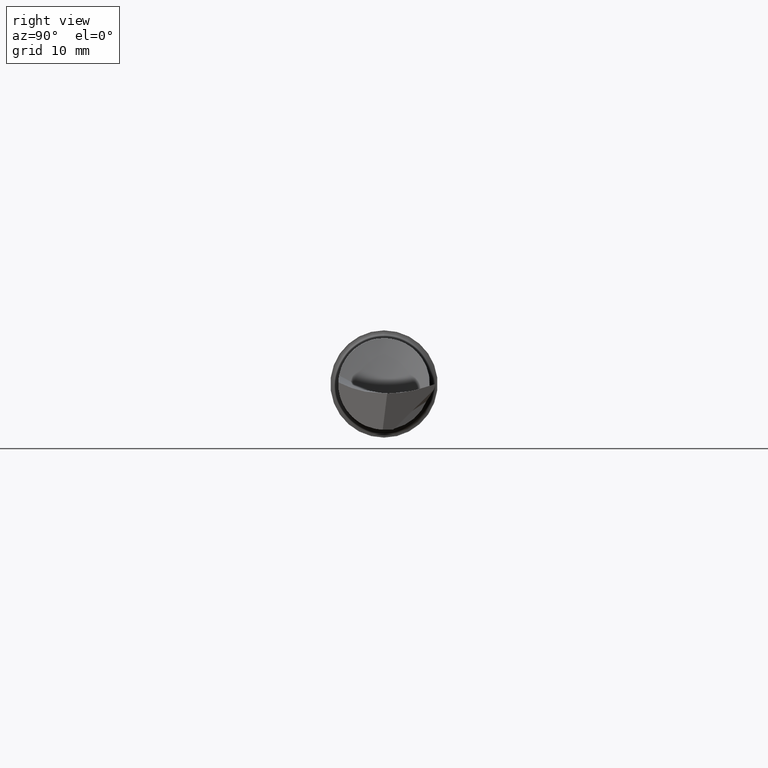
[diagram: clean part render]
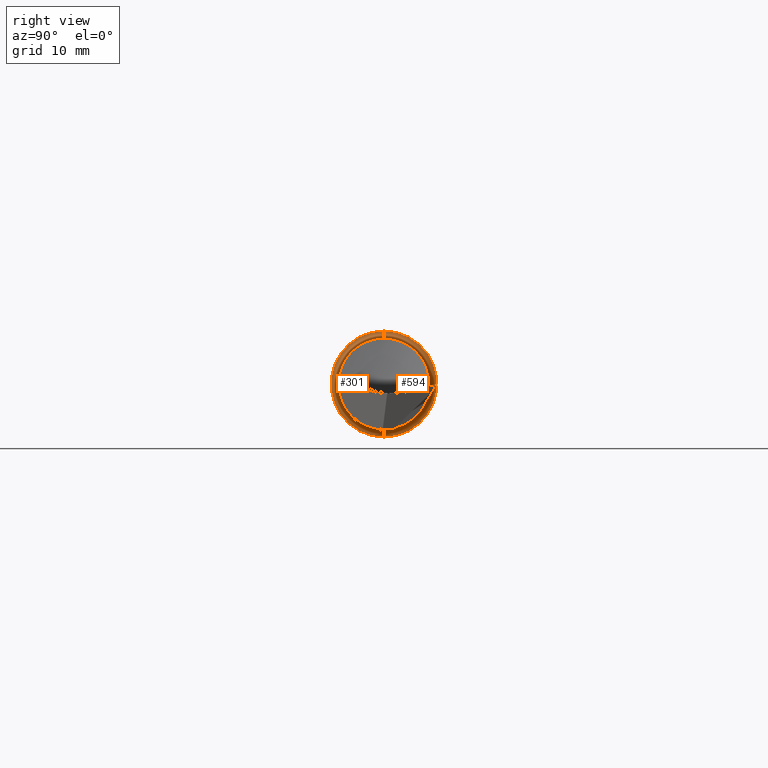
[diagram: same view with one multi-face feature highlighted, each face labeled with its STEP entity id]
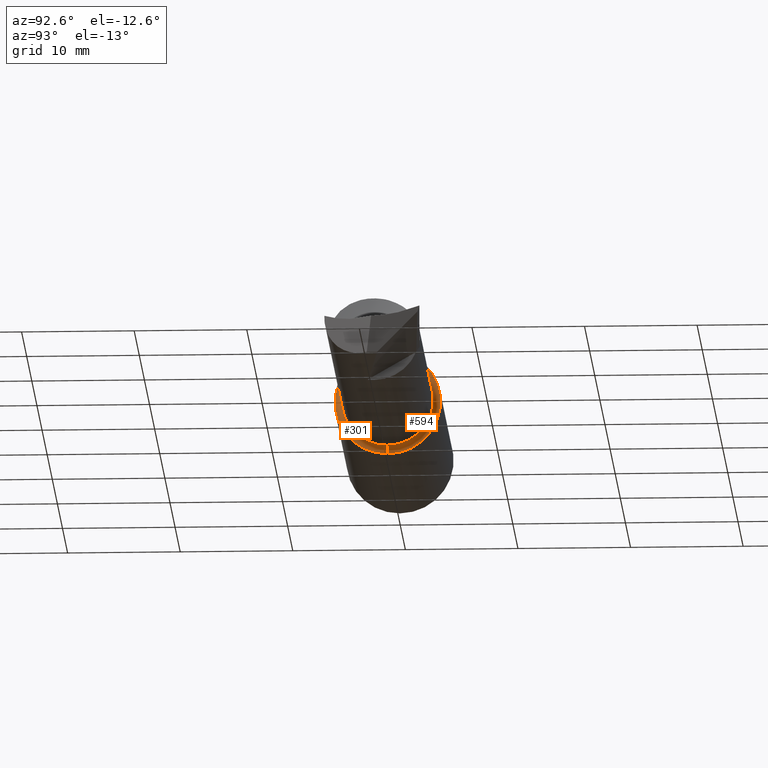
[diagram: same view with one multi-face feature highlighted, each face labeled with its STEP entity id]
A machine part, right view. The highlighted faces form ONE feature: a constant-radius fillet chain: 2 tangent blend faces with common blend radius 0.635 mm. The faces share edges in the B-rep.
A second angle (auxiliary view) of the same feature is appended — it is thin or edge-on in the first view.
Their STEP definitions:
[1] entity #594 (Torus):
#26 = CIRCLE ( 'NONE', #654, 0.02499999999999993894 ) ;
#28 = VERTEX_POINT ( 'NONE', #486 ) ;
#40 = ORIENTED_EDGE ( 'NONE', *, *, #162, .T. ) ;
#65 = FACE_OUTER_BOUND ( 'NONE', #782, .T. ) ;
#73 = EDGE_CURVE ( 'NONE', #28, #183, #26, .T. ) ;
#115 = CARTESIAN_POINT ( 'NONE',  ( 0.9598893049320388338, 0.000000000000000000, 0.000000000000000000 ) ) ;
#119 = CARTESIAN_POINT ( 'NONE',  ( 0.9848893049320387449, 2.265596578422603655E-17, -0.1849999999999999978 ) ) ;
#134 = DIRECTION ( 'NONE',  ( 0.000000000000000000, 0.000000000000000000, 1.000000000000000000 ) ) ;
#162 = EDGE_CURVE ( 'NONE', #183, #861, #250, .T. ) ;
#166 = AXIS2_PLACEMENT_3D ( 'NONE', #119, #456, #523 ) ;
#180 = AXIS2_PLACEMENT_3D ( 'NONE', #115, #664, #320 ) ;
#183 = VERTEX_POINT ( 'NONE', #524 ) ;
#189 = EDGE_CURVE ( 'NONE', #28, #819, #673, .T. ) ;
#250 = CIRCLE ( 'NONE', #528, 0.1600000000000000588 ) ;
#315 = CARTESIAN_POINT ( 'NONE',  ( 0.9848893049320387449, 0.000000000000000000, 0.000000000000000000 ) ) ;
#320 = DIRECTION ( 'NONE',  ( 0.000000000000000000, 0.000000000000000000, 1.000000000000000000 ) ) ;
#325 = CIRCLE ( 'NONE', #166, 0.02499999999999993894 ) ;
#352 = ORIENTED_EDGE ( 'NONE', *, *, #411, .F. ) ;
#356 = TOROIDAL_SURFACE ( 'NONE', #875, 0.1849999999999999978, 0.02499999999999993894 ) ;
#374 = CARTESIAN_POINT ( 'NONE',  ( 0.9848893049320387449, 0.000000000000000000, 0.1849999999999999978 ) ) ;
#385 = DIRECTION ( 'NONE',  ( 0.000000000000000000, 0.000000000000000000, -1.000000000000000000 ) ) ;
#399 = CARTESIAN_POINT ( 'NONE',  ( 0.9598893049320388338, 2.265596578422603963E-17, -0.1849999999999999978 ) ) ;
#411 = EDGE_CURVE ( 'NONE', #819, #861, #325, .T. ) ;
#454 = DIRECTION ( 'NONE',  ( 0.000000000000000000, 0.000000000000000000, 1.000000000000000000 ) ) ;
#456 = DIRECTION ( 'NONE',  ( -0.000000000000000000, 1.000000000000000000, 1.224646799147353207E-16 ) ) ;
#468 = ORIENTED_EDGE ( 'NONE', *, *, #73, .T. ) ;
#476 = CARTESIAN_POINT ( 'NONE',  ( 0.9848893049320387449, 0.000000000000000000, 0.000000000000000000 ) ) ;
#486 = CARTESIAN_POINT ( 'NONE',  ( 0.9598893049320388338, 0.000000000000000000, 0.1849999999999999978 ) ) ;
#517 = ORIENTED_EDGE ( 'NONE', *, *, #189, .F. ) ;
#523 = DIRECTION ( 'NONE',  ( 0.000000000000000000, -1.224646799147353454E-16, 1.000000000000000000 ) ) ;
#524 = CARTESIAN_POINT ( 'NONE',  ( 0.9848893049320387449, 0.000000000000000000, 0.1600000000000000588 ) ) ;
#528 = AXIS2_PLACEMENT_3D ( 'NONE', #315, #857, #454 ) ;
#594 = ADVANCED_FACE ( 'NONE', ( #65 ), #356, .F. ) ;
#654 = AXIS2_PLACEMENT_3D ( 'NONE', #374, #723, #385 ) ;
#664 = DIRECTION ( 'NONE',  ( -1.000000000000000000, -0.000000000000000000, -0.000000000000000000 ) ) ;
#673 = CIRCLE ( 'NONE', #180, 0.1849999999999999978 ) ;
#684 = CARTESIAN_POINT ( 'NONE',  ( 0.9848893049320387449, 1.959434878635766031E-17, -0.1600000000000000588 ) ) ;
#723 = DIRECTION ( 'NONE',  ( 0.000000000000000000, -1.000000000000000000, 0.000000000000000000 ) ) ;
#753 = DIRECTION ( 'NONE',  ( -1.000000000000000000, -0.000000000000000000, -0.000000000000000000 ) ) ;
#782 = EDGE_LOOP ( 'NONE', ( #352, #517, #468, #40 ) ) ;
#819 = VERTEX_POINT ( 'NONE', #399 ) ;
#857 = DIRECTION ( 'NONE',  ( -1.000000000000000000, -0.000000000000000000, -0.000000000000000000 ) ) ;
#861 = VERTEX_POINT ( 'NONE', #684 ) ;
#875 = AXIS2_PLACEMENT_3D ( 'NONE', #476, #753, #134 ) ;
[2] entity #301 (Torus):
#10 = CIRCLE ( 'NONE', #771, 0.1600000000000000588 ) ;
#26 = CIRCLE ( 'NONE', #654, 0.02499999999999993894 ) ;
#28 = VERTEX_POINT ( 'NONE', #486 ) ;
#48 = EDGE_LOOP ( 'NONE', ( #670, #247, #231, #58 ) ) ;
#58 = ORIENTED_EDGE ( 'NONE', *, *, #73, .F. ) ;
#73 = EDGE_CURVE ( 'NONE', #28, #183, #26, .T. ) ;
#119 = CARTESIAN_POINT ( 'NONE',  ( 0.9848893049320387449, 2.265596578422603655E-17, -0.1849999999999999978 ) ) ;
#153 = DIRECTION ( 'NONE',  ( 0.000000000000000000, 0.000000000000000000, 1.000000000000000000 ) ) ;
#166 = AXIS2_PLACEMENT_3D ( 'NONE', #119, #456, #523 ) ;
#178 = CARTESIAN_POINT ( 'NONE',  ( 0.9598893049320388338, 0.000000000000000000, 0.000000000000000000 ) ) ;
#183 = VERTEX_POINT ( 'NONE', #524 ) ;
#188 = CARTESIAN_POINT ( 'NONE',  ( 0.9848893049320387449, 0.000000000000000000, 0.000000000000000000 ) ) ;
#224 = CIRCLE ( 'NONE', #465, 0.1849999999999999978 ) ;
#231 = ORIENTED_EDGE ( 'NONE', *, *, #358, .T. ) ;
#247 = ORIENTED_EDGE ( 'NONE', *, *, #411, .T. ) ;
#301 = ADVANCED_FACE ( 'NONE', ( #691 ), #872, .F. ) ;
#314 = DIRECTION ( 'NONE',  ( -1.000000000000000000, -0.000000000000000000, -0.000000000000000000 ) ) ;
#325 = CIRCLE ( 'NONE', #166, 0.02499999999999993894 ) ;
#358 = EDGE_CURVE ( 'NONE', #861, #183, #10, .T. ) ;
#364 = DIRECTION ( 'NONE',  ( -1.000000000000000000, -0.000000000000000000, -0.000000000000000000 ) ) ;
#374 = CARTESIAN_POINT ( 'NONE',  ( 0.9848893049320387449, 0.000000000000000000, 0.1849999999999999978 ) ) ;
#377 = DIRECTION ( 'NONE',  ( 0.000000000000000000, 0.000000000000000000, 1.000000000000000000 ) ) ;
#385 = DIRECTION ( 'NONE',  ( 0.000000000000000000, 0.000000000000000000, -1.000000000000000000 ) ) ;
#399 = CARTESIAN_POINT ( 'NONE',  ( 0.9598893049320388338, 2.265596578422603963E-17, -0.1849999999999999978 ) ) ;
#411 = EDGE_CURVE ( 'NONE', #819, #861, #325, .T. ) ;
#434 = EDGE_CURVE ( 'NONE', #819, #28, #224, .T. ) ;
#456 = DIRECTION ( 'NONE',  ( -0.000000000000000000, 1.000000000000000000, 1.224646799147353207E-16 ) ) ;
#461 = DIRECTION ( 'NONE',  ( -1.000000000000000000, -0.000000000000000000, -0.000000000000000000 ) ) ;
#465 = AXIS2_PLACEMENT_3D ( 'NONE', #178, #314, #377 ) ;
#486 = CARTESIAN_POINT ( 'NONE',  ( 0.9598893049320388338, 0.000000000000000000, 0.1849999999999999978 ) ) ;
#523 = DIRECTION ( 'NONE',  ( 0.000000000000000000, -1.224646799147353454E-16, 1.000000000000000000 ) ) ;
#524 = CARTESIAN_POINT ( 'NONE',  ( 0.9848893049320387449, 0.000000000000000000, 0.1600000000000000588 ) ) ;
#654 = AXIS2_PLACEMENT_3D ( 'NONE', #374, #723, #385 ) ;
#670 = ORIENTED_EDGE ( 'NONE', *, *, #434, .F. ) ;
#684 = CARTESIAN_POINT ( 'NONE',  ( 0.9848893049320387449, 1.959434878635766031E-17, -0.1600000000000000588 ) ) ;
#691 = FACE_OUTER_BOUND ( 'NONE', #48, .T. ) ;
#700 = CARTESIAN_POINT ( 'NONE',  ( 0.9848893049320387449, 0.000000000000000000, 0.000000000000000000 ) ) ;
#723 = DIRECTION ( 'NONE',  ( 0.000000000000000000, -1.000000000000000000, 0.000000000000000000 ) ) ;
#738 = DIRECTION ( 'NONE',  ( 0.000000000000000000, 0.000000000000000000, 1.000000000000000000 ) ) ;
#771 = AXIS2_PLACEMENT_3D ( 'NONE', #700, #364, #153 ) ;
#783 = AXIS2_PLACEMENT_3D ( 'NONE', #188, #461, #738 ) ;
#819 = VERTEX_POINT ( 'NONE', #399 ) ;
#861 = VERTEX_POINT ( 'NONE', #684 ) ;
#872 = TOROIDAL_SURFACE ( 'NONE', #783, 0.1849999999999999978, 0.02499999999999993894 ) ;